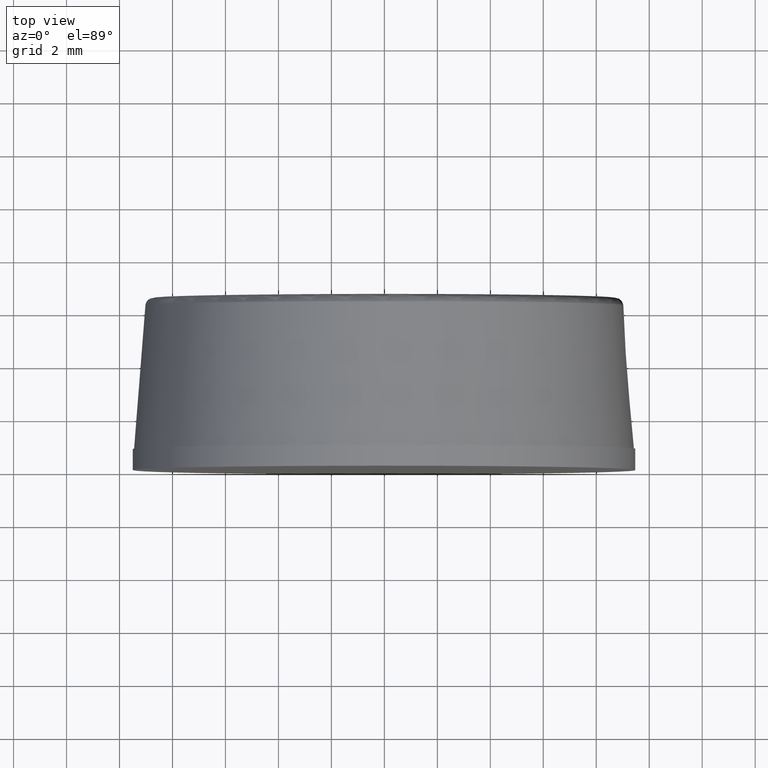
[diagram: clean part render]
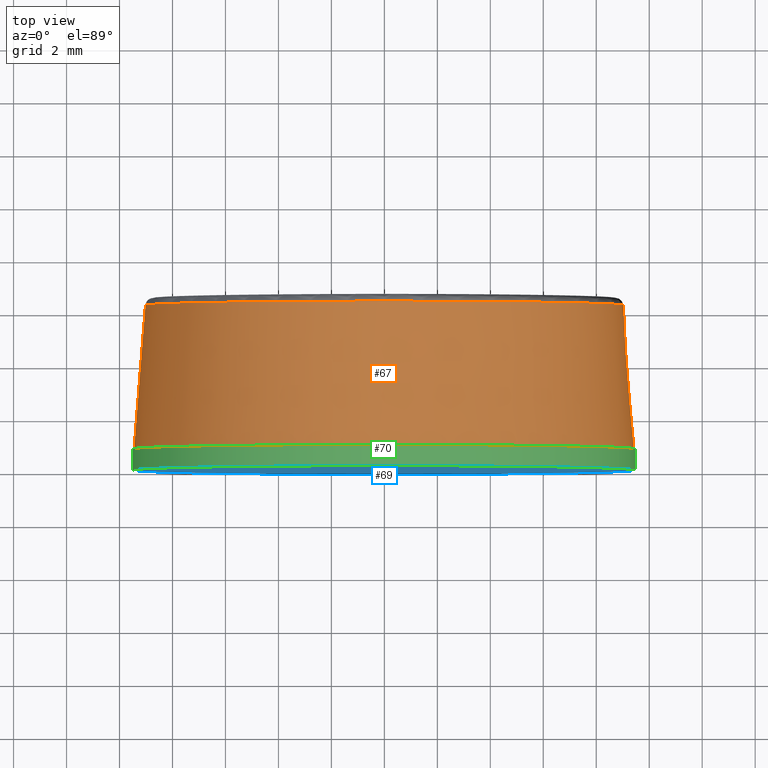
[diagram: same view with three faces highlighted in distinct colors, each labeled with its STEP entity id]
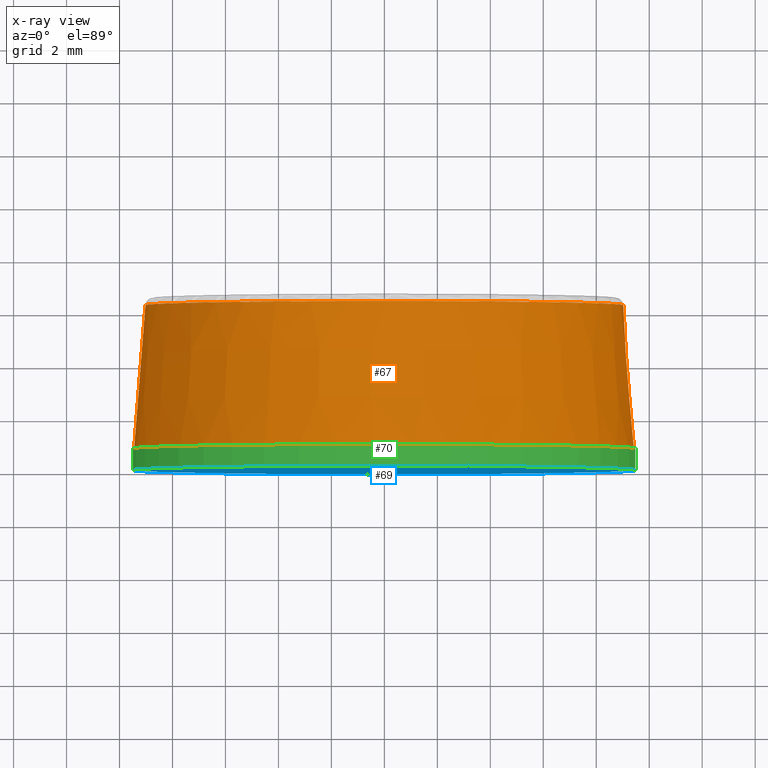
[diagram: x-ray of the same camera — body ghosted, the three highlighted faces saturated]
A machine part, top view with three faces highlighted in distinct colors.
The next image is the same camera in x-ray (body ghosted, the three faces saturated) — at least one of them is partly hidden behind the body in this view.
Their STEP definitions:

[orange] entity #67 — the highlighted conical surface has half-angle 4.514 deg.
#19=CONICAL_SURFACE('',#77,9.225,4.51398845800126);
#21=FACE_BOUND('',#33,.T.);
#25=FACE_OUTER_BOUND('',#32,.T.);
#32=EDGE_LOOP('',(#57));
#33=EDGE_LOOP('',(#58));
#40=CIRCLE('',#75,9.02182020429269);
#42=CIRCLE('',#78,9.45);
#45=VERTEX_POINT('',#111);
#47=VERTEX_POINT('',#116);
#50=EDGE_CURVE('',#45,#45,#40,.T.);
#52=EDGE_CURVE('',#47,#47,#42,.T.);
#57=ORIENTED_EDGE('',*,*,#52,.T.);
#58=ORIENTED_EDGE('',*,*,#50,.F.);
#67=ADVANCED_FACE('',(#25,#21),#19,.T.);
#75=AXIS2_PLACEMENT_3D('',#112,#89,#90);
#77=AXIS2_PLACEMENT_3D('',#115,#93,#94);
#78=AXIS2_PLACEMENT_3D('',#117,#95,#96);
#89=DIRECTION('center_axis',(0.,1.,0.));
#90=DIRECTION('ref_axis',(1.,0.,-6.12323399573676E-17));
#93=DIRECTION('center_axis',(0.,-1.,0.));
#94=DIRECTION('ref_axis',(-1.,0.,0.));
#95=DIRECTION('center_axis',(0.,1.,0.));
#96=DIRECTION('ref_axis',(1.,0.,0.));
#111=CARTESIAN_POINT('',(-9.02182020429269,6.223610745626,1.104854323567E-15));
#112=CARTESIAN_POINT('Origin',(0.,6.223610745626,-5.52427161783498E-16));
#115=CARTESIAN_POINT('Origin',(0.,3.65,0.));
#116=CARTESIAN_POINT('',(-9.45,0.799999999999998,0.));
#117=CARTESIAN_POINT('Origin',(0.,0.799999999999997,0.));

[blue] entity #69 — the highlighted planar face has unit normal (0, -1, 0).
#17=PLANE('',#80);
#27=FACE_OUTER_BOUND('',#35,.T.);
#35=EDGE_LOOP('',(#60));
#43=CIRCLE('',#81,9.5);
#48=VERTEX_POINT('',#120);
#53=EDGE_CURVE('',#48,#48,#43,.T.);
#60=ORIENTED_EDGE('',*,*,#53,.F.);
#69=ADVANCED_FACE('',(#27),#17,.T.);
#80=AXIS2_PLACEMENT_3D('',#119,#99,#100);
#81=AXIS2_PLACEMENT_3D('',#121,#101,#102);
#99=DIRECTION('center_axis',(0.,-1.,0.));
#100=DIRECTION('ref_axis',(0.,0.,-1.));
#101=DIRECTION('center_axis',(0.,1.,0.));
#102=DIRECTION('ref_axis',(1.,0.,0.));
#119=CARTESIAN_POINT('Origin',(-9.5,0.,0.));
#120=CARTESIAN_POINT('',(-9.5,0.,0.));
#121=CARTESIAN_POINT('Origin',(0.,0.,0.));

[green] entity #70 — the highlighted cylindrical surface (bore or boss wall) has radius 9.5 mm, axis along (0, 1, 0).
#15=CYLINDRICAL_SURFACE('',#82,9.5);
#22=FACE_BOUND('',#37,.T.);
#28=FACE_OUTER_BOUND('',#36,.T.);
#36=EDGE_LOOP('',(#61));
#37=EDGE_LOOP('',(#62));
#43=CIRCLE('',#81,9.5);
#44=CIRCLE('',#83,9.5);
#48=VERTEX_POINT('',#120);
#49=VERTEX_POINT('',#123);
#53=EDGE_CURVE('',#48,#48,#43,.T.);
#54=EDGE_CURVE('',#49,#49,#44,.T.);
#61=ORIENTED_EDGE('',*,*,#53,.T.);
#62=ORIENTED_EDGE('',*,*,#54,.F.);
#70=ADVANCED_FACE('',(#28,#22),#15,.T.);
#81=AXIS2_PLACEMENT_3D('',#121,#101,#102);
#82=AXIS2_PLACEMENT_3D('',#122,#103,#104);
#83=AXIS2_PLACEMENT_3D('',#124,#105,#106);
#101=DIRECTION('center_axis',(0.,1.,0.));
#102=DIRECTION('ref_axis',(1.,0.,0.));
#103=DIRECTION('center_axis',(0.,1.,0.));
#104=DIRECTION('ref_axis',(-1.,0.,0.));
#105=DIRECTION('center_axis',(0.,1.,0.));
#106=DIRECTION('ref_axis',(1.,0.,0.));
#120=CARTESIAN_POINT('',(-9.5,0.,0.));
#121=CARTESIAN_POINT('Origin',(0.,0.,0.));
#122=CARTESIAN_POINT('Origin',(0.,0.399999999999999,0.));
#123=CARTESIAN_POINT('',(-9.5,0.799999999999998,0.));
#124=CARTESIAN_POINT('Origin',(0.,0.799999999999997,0.));